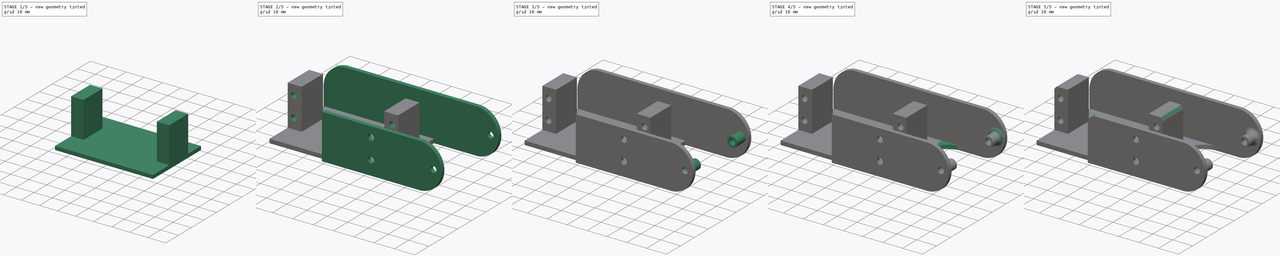
[diagram: build sequence overview — one tinted view per stage of 5, left to right]
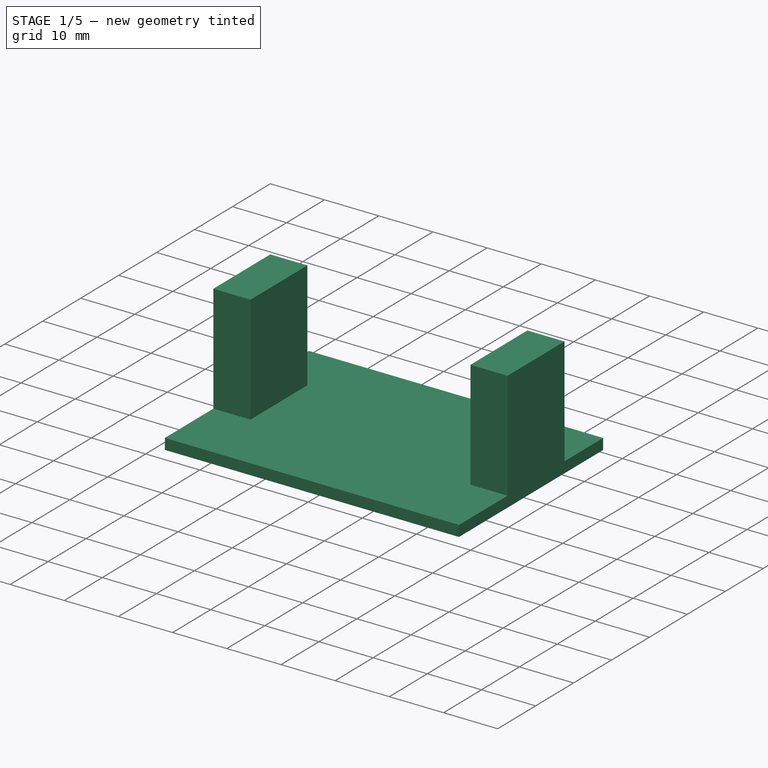
[diagram: stage 1 of 5 — iso view after this stage's code; geometry added in this stage tinted green]
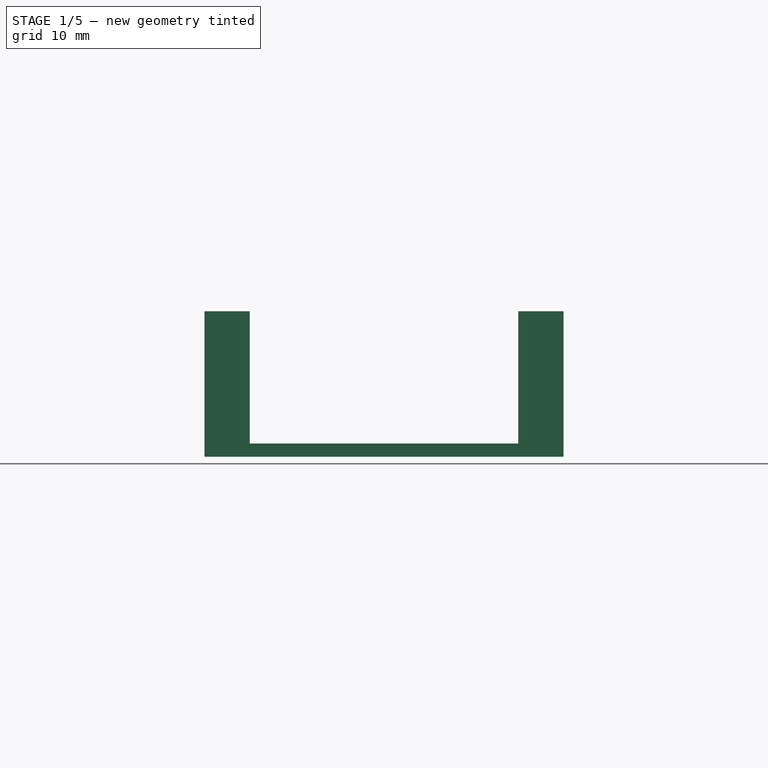
[diagram: stage 1 of 5 — front view after this stage's code; geometry added in this stage tinted green]
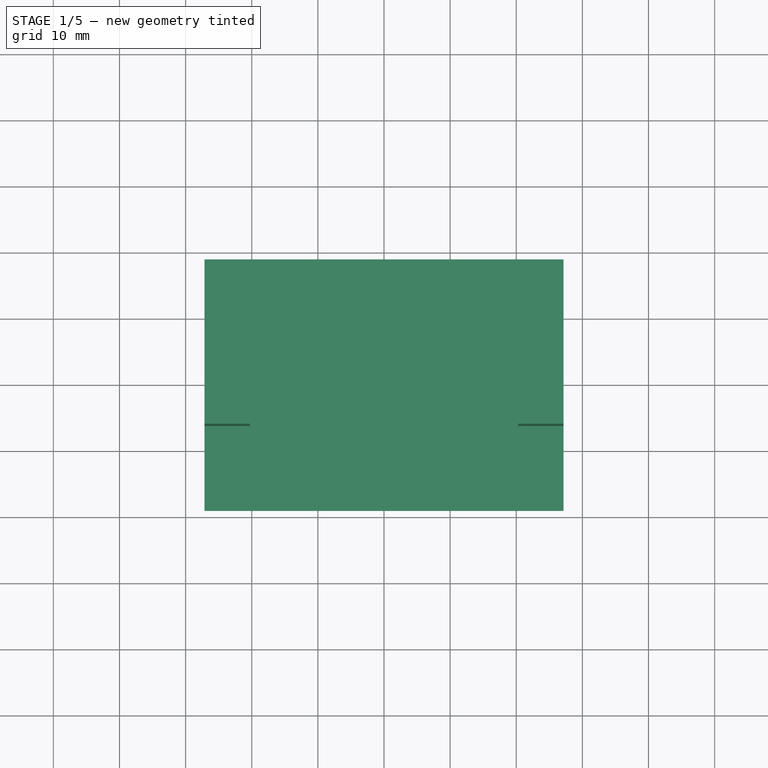
[diagram: stage 1 of 5 — top view after this stage's code; geometry added in this stage tinted green]
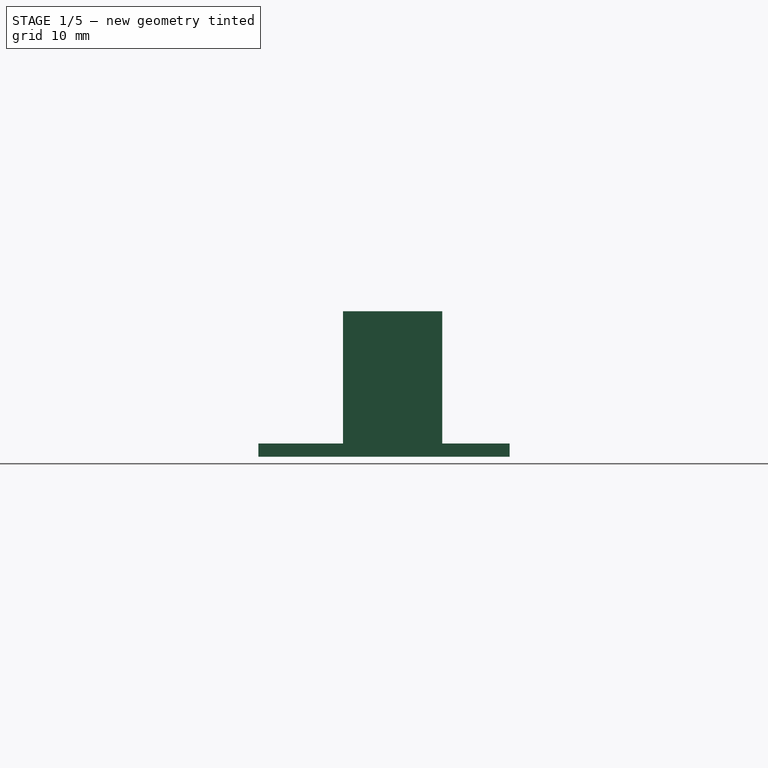
[diagram: stage 1 of 5 — right view after this stage's code; geometry added in this stage tinted green]
FCSTD DOCUMENT  (FreeCAD 0.20R29177 +233 (Git))
Label: 3BRnew_calf
License: All rights reserved
LicenseURL: http://en.wikipedia.org/wiki/All_rights_reserved
objects: Sketcher::SketchObject×10, PartDesign::Pad×8, PartDesign::Fillet×7, PartDesign::Pocket×2, Spreadsheet::Sheet×1, PartDesign::Body×1
note: 45 computed .brp shape members not serialized (recipe doc carries the construction recipe); baked Part::Feature solids carry a one-line shape summary decoded from their .brp

FEATURE [Spreadsheet::Sheet] Spreadsheet
  cells = A1=tolerance; B1(tolerance)=0.2; A2=thickness; B2(thickness)=2; A3=calf_len_overall; B3(calf_len_overall)=86; A4=servo_outer_x; B4(servo_x)=54.3; A5=servo_inner_x; B5(servo_inner_x)=40.2; A6=servo_y; B6(servo_y)=38; D6=sketch 41,5 real 38,0; A7=servo_z; B7(servo_z)=20; A8=foothold_y_len; B8(foothold_y_len)=15; A9=foothold_y_pos; B9(foothold_y_pos)==25.8 + B2; C9=c; D9=sketch 27.8 real 25,1; A10=foothold_z_len; B10(foothold_z_len)==B7; C10=c; A11=foothold_x_len; B11(foothold_x_len)==(B4 - B5) / 2 - B1; C11=c; A12=upper_hole_z_pos; B12(upper_hole_z_pos)==15 + B2; C12=c; A13=lower_hole_z_pos; B13(lower_hole_z_pos)==5 + B2; C13=c; A14=hole_x_pos; B14(hole_x_pos)=3; A15=hole_diameter; B15(hole_diameter)=3; A16=axis_x_pos; B16(axis_x_pos)=37.25; A17=axis_z_pos; B17(axis_z_pos)==10 + B2; A18=axis_y_pos; B18(axis_y_pos)=0; A19=axis_diameter; B19(axis_diameter)=5.9; A20=axis_length; B20(axis_length)=5; A21=plate_y_dim; B21(plate_y_dim)==B6 + B2; C21=c
FEATURE [Sketcher::SketchObject] Sketch  label="plateSketch"
  FullyConstrained = true
  MapMode = 2
  Placement = pos=(0,0,2) rot=(0,0,1;0rad)
  expr: Constraints[8] = Spreadsheet.servo_x
  expr: Constraints[9] = Spreadsheet.servo_y
  sketch-geometry (4):
    g0: LineSegment StartX=-27.15 StartY=19 StartZ=0 EndX=27.15 EndY=19 EndZ=0
    g1: LineSegment StartX=27.15 StartY=19 StartZ=0 EndX=27.15 EndY=-19 EndZ=0
    g2: LineSegment StartX=27.15 StartY=-19 StartZ=0 EndX=-27.15 EndY=-19 EndZ=0
    g3: LineSegment StartX=-27.15 StartY=-19 StartZ=0 EndX=-27.15 EndY=19 EndZ=0
  constraints (11):
    c: Coincident(g0,g1)
    c: Coincident(g1,g2)
    c: Coincident(g2,g3)
    c: Coincident(g3,g0)
    c: Horizontal(g0)
    c: Horizontal(g2)
    c: Vertical(g1)
    c: Vertical(g3)
    c: DistanceX(g2,g2) = 54.3
    c: DistanceY(g3,g3) = 38
    c: Symmetric(g0,g1,g-1)
FEATURE [PartDesign::Pad] Pad  label="platePad"
  Direction = (0,0,1)
  Length = 2
  Length2 = 10
  Placement = pos=(0,0,2) rot=(0,0,1;0rad)
  Profile = -> Sketch
  ReferenceAxis = -> Sketch [N_Axis]
  Type = 0
  expr: Length = Spreadsheet.thickness
FEATURE [Sketcher::SketchObject] Sketch003  label="servoHolderHigherSketch"
  ExternalGeometry = -> [Pad]
  FullyConstrained = true
  MapMode = 5
  Placement = pos=(0,0,4) rot=(0,0,1;0rad)
  Support = -> [Pad]
  expr: Constraints[10] = Spreadsheet.foothold_y_pos
  expr: Constraints[8] = Spreadsheet.foothold_y_len
  expr: Constraints[9] = Spreadsheet.foothold_x_len
  sketch-geometry (4):
    g0: LineSegment StartX=20.3 StartY=8.8 StartZ=0 EndX=27.15 EndY=8.8 EndZ=0
    g1: LineSegment StartX=27.15 StartY=8.8 StartZ=0 EndX=27.15 EndY=-6.2 EndZ=0
    g2: LineSegment StartX=27.15 StartY=-6.2 StartZ=0 EndX=20.3 EndY=-6.2 EndZ=0
    g3: LineSegment StartX=20.3 StartY=-6.2 StartZ=0 EndX=20.3 EndY=8.8 EndZ=0
  constraints (12):
    c: Coincident(g0,g1)
    c: Coincident(g1,g2)
    c: Coincident(g2,g3)
    c: Coincident(g3,g0)
    c: Horizontal(g0)
    c: Horizontal(g2)
    c: Vertical(g1)
    c: Vertical(g3)
    c: DistanceY(g1,g0) = 15
    c: DistanceX(g0,g0) = 6.85
    c: DistanceY(g-3,g0) = 27.8
    c: Vertical(g0,g-3)
FEATURE [PartDesign::Pad] Pad001  label="servoHolderHigherPad"
  BaseFeature = -> Pad
  Direction = (0,0,1)
  Length = 20
  Length2 = 10
  Placement = pos=(0,0,2) rot=(0,0,1;0rad)
  Profile = -> Sketch003
  ReferenceAxis = -> Sketch003 [N_Axis]
  Type = 0
  expr: Length = Spreadsheet.foothold_z_len
FEATURE [Sketcher::SketchObject] Sketch010  label="servoHolderLowerSketch"
  ExternalGeometry = -> [Pad001]
  FullyConstrained = true
  MapMode = 5
  Placement = pos=(0,0,4) rot=(0,0,1;0rad)
  Support = -> [Pad001]
  expr: Constraints[11] = Spreadsheet.foothold_y_pos
  expr: Constraints[8] = Spreadsheet.foothold_y_len
  expr: Constraints[9] = Spreadsheet.foothold_x_len
  sketch-geometry (4):
    g0: LineSegment StartX=-27.15 StartY=8.8 StartZ=0 EndX=-20.3 EndY=8.8 EndZ=0
    g1: LineSegment StartX=-20.3 StartY=8.8 StartZ=0 EndX=-20.3 EndY=-6.2 EndZ=0
    g2: LineSegment StartX=-20.3 StartY=-6.2 StartZ=0 EndX=-27.15 EndY=-6.2 EndZ=0
    g3: LineSegment StartX=-27.15 StartY=-6.2 StartZ=0 EndX=-27.15 EndY=8.8 EndZ=0
  constraints (12):
    c: Coincident(g0,g1)
    c: Coincident(g1,g2)
    c: Coincident(g2,g3)
    c: Coincident(g3,g0)
    c: Horizontal(g0)
    c: Horizontal(g2)
    c: Vertical(g1)
    c: Vertical(g3)
    c: DistanceY(g3,g3) = 15
    c: DistanceX(g2,g2) = 6.85
    c: Vertical(g2,g-3)
    c: DistanceY(g-3,g0) = 27.8
FEATURE [PartDesign::Pad] Pad002  label="servoHolderLowerPad"
  BaseFeature = -> Pad001
  Direction = (0,0,1)
  Length = 20
  Length2 = 10
  Placement = pos=(0,0,2) rot=(0,0,1;0rad)
  Profile = -> Sketch010
  ReferenceAxis = -> Sketch010 [N_Axis]
  Type = 0
  expr: Length = Spreadsheet.foothold_z_len
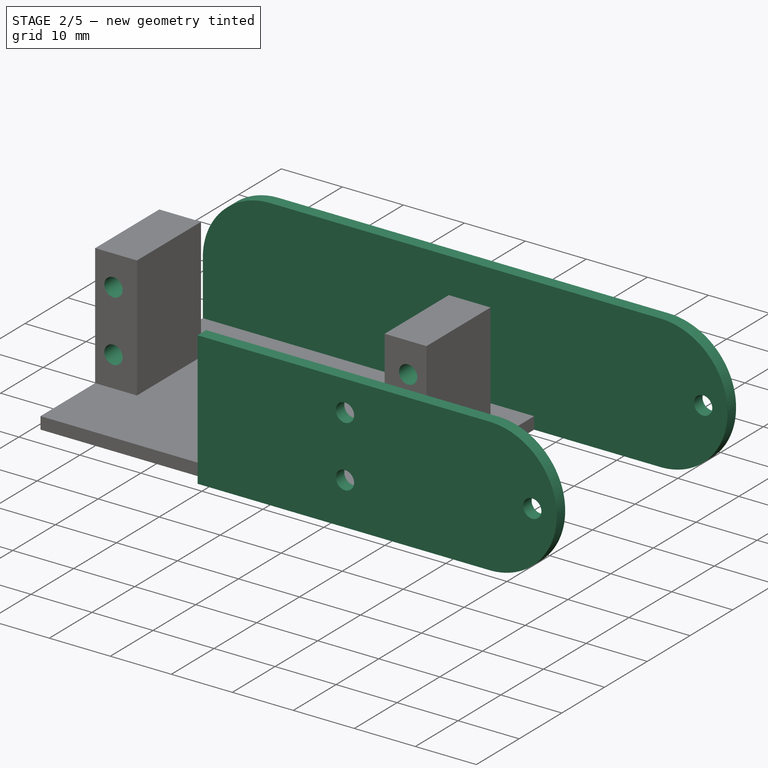
[diagram: stage 2 of 5 — iso view after this stage's code; geometry added in this stage tinted green]
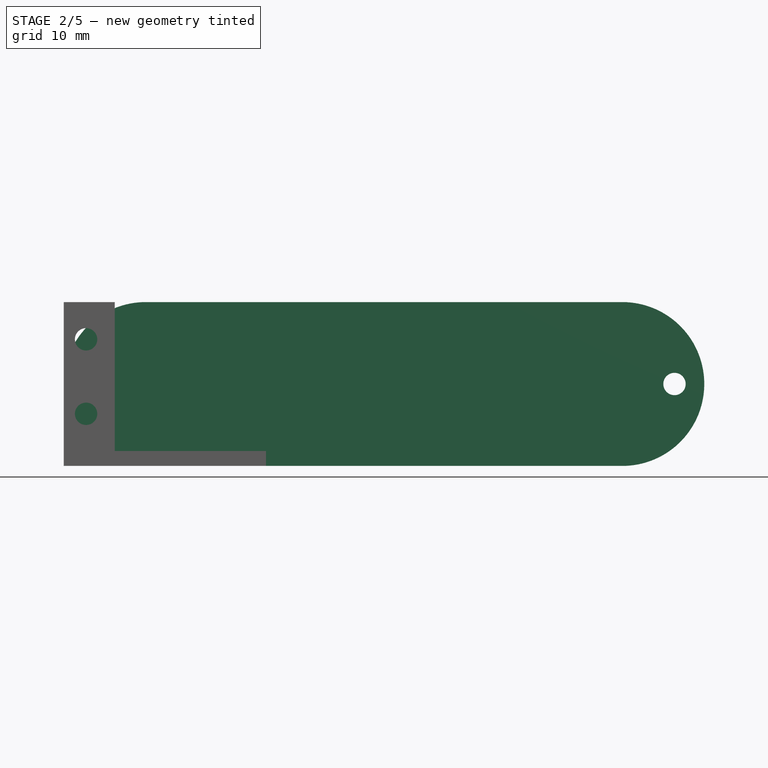
[diagram: stage 2 of 5 — front view after this stage's code; geometry added in this stage tinted green]
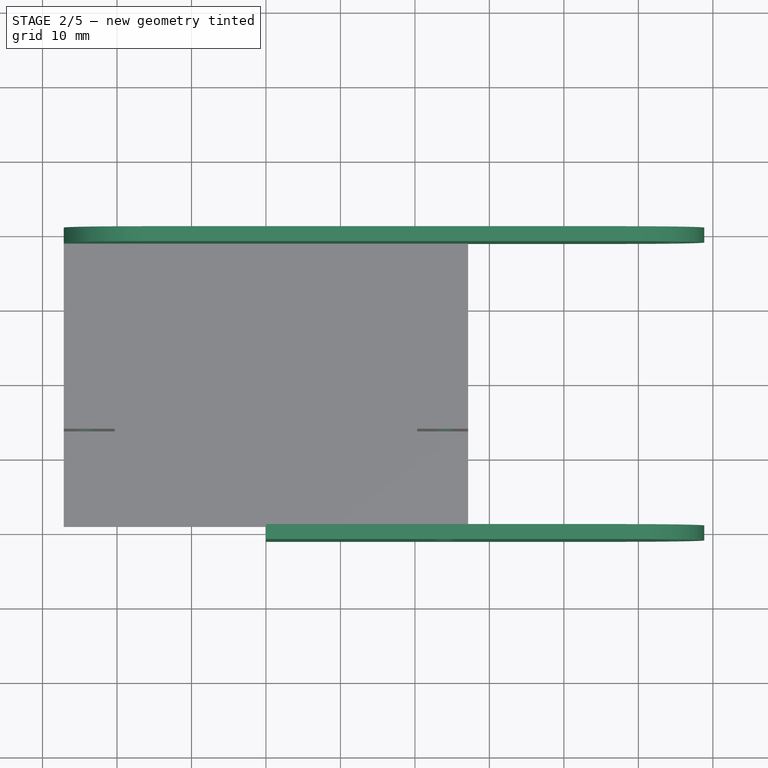
[diagram: stage 2 of 5 — top view after this stage's code; geometry added in this stage tinted green]
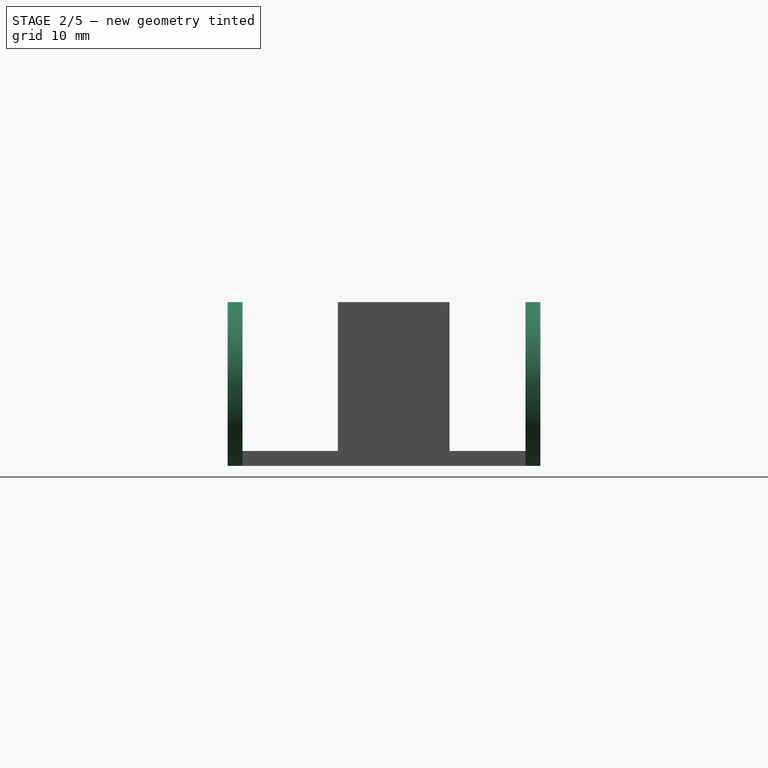
[diagram: stage 2 of 5 — right view after this stage's code; geometry added in this stage tinted green]
FEATURE [Sketcher::SketchObject] Sketch004  label="servoHoleHigherSketch"
  FullyConstrained = false
  MapMode = 5
  Placement = pos=(0,-6.2,2) rot=(1,0,0;1.5708rad)
  Support = -> [Pad002]
  expr: Constraints[2] = Spreadsheet.hole_diameter
  expr: Constraints[3] = Spreadsheet.lower_hole_z_pos
  sketch-geometry (2):
    g0: Circle CenterX=-24.15 CenterY=7 CenterZ=0 NormalX=0 NormalY=0 NormalZ=1 AngleXU=0 Radius=1.5
    g1: Circle CenterX=-24.15 CenterY=17 CenterZ=0 NormalX=0 NormalY=0 NormalZ=1 AngleXU=0 Radius=1.5
  constraints (4):
    c: Vertical(g0,g1)
    c: Equal(g1,g0)
    c: Diameter(g1) = 3
    c: DistanceY(g0) = 7
FEATURE [PartDesign::Pocket] Pocket  label="servoHolderHigherPocket"
  BaseFeature = -> Pad002
  Direction = (0,1,-2e-16)
  Length = 15
  Length2 = 5
  Placement = pos=(0,0,2) rot=(0,0,1;0rad)
  Profile = -> Sketch004
  ReferenceAxis = -> Sketch004 [N_Axis]
  Type = 0
  expr: Length = Spreadsheet.foothold_y_len
FEATURE [Sketcher::SketchObject] Sketch002  label="servoLowerHoleSketch"
  FullyConstrained = false
  MapMode = 5
  Placement = pos=(0,-6.2,2) rot=(1,0,0;1.5708rad)
  Support = -> [Pocket]
  expr: Constraints[2] = Spreadsheet.hole_diameter
  sketch-geometry (2):
    g0: Circle CenterX=24.15 CenterY=17 CenterZ=0 NormalX=0 NormalY=0 NormalZ=1 AngleXU=0 Radius=1.5
    g1: Circle CenterX=24.15 CenterY=7 CenterZ=0 NormalX=0 NormalY=0 NormalZ=1 AngleXU=0 Radius=1.5
  constraints (3):
    c: Vertical(g0,g1)
    c: Equal(g0,g1)
    c: Diameter(g0) = 3
FEATURE [PartDesign::Pocket] Pocket001
  BaseFeature = -> Pocket
  Direction = (0,1,-2e-16)
  Length = 15
  Length2 = 5
  Placement = pos=(0,0,2) rot=(0,0,1;0rad)
  Profile = -> Sketch002
  ReferenceAxis = -> Sketch002 [N_Axis]
  Type = 0
  expr: Length = Spreadsheet.foothold_y_len
FEATURE [Sketcher::SketchObject] Sketch005  label="servoBackSketch"
  FullyConstrained = false
  MapMode = 5
  Placement = pos=(0,19,2) rot=(0,0.707107,0.707107;3.14159rad)
  Support = -> [Pocket001]
  expr: Constraints[2] = Spreadsheet.hole_diameter
  sketch-geometry (7):
    g0: LineSegment StartX=16.15 StartY=22 StartZ=0 EndX=-47.85 EndY=22 EndZ=0
    g1: LineSegment StartX=27.15 StartY=0 StartZ=0 EndX=27.15 EndY=11 EndZ=0
    g2: Circle CenterX=-54.85 CenterY=11 CenterZ=0 NormalX=0 NormalY=0 NormalZ=1 AngleXU=0 Radius=1.5
    g3: LineSegment StartX=27.15 StartY=0 StartZ=0 EndX=-47.85 EndY=0 EndZ=0
    g4: GeomPoint X=10.15 Y=11 Z=0
    g5: ArcOfCircle CenterX=-47.85 CenterY=11 CenterZ=0 NormalX=0 NormalY=0 NormalZ=1 AngleXU=0 Radius=11 StartAngle=1.5708 EndAngle=4.71239
    g6: ArcOfCircle CenterX=16.15 CenterY=11 CenterZ=0 NormalX=0 NormalY=0 NormalZ=1 AngleXU=0 Radius=11 StartAngle=2.34e-14 EndAngle=1.5708
  constraints (18):
    c: Horizontal(g0)
    c: Vertical(g1)
    c: Diameter(g2) = 3
    c: Coincident(g3,g1)
    c: Horizontal(g3)
    c: DistanceX(g4,g1) = 17
    c: DistanceX(g2,g4) = 65
    c: Horizontal(g4,g2)
    c: DistanceY(g1,g4) = 11
    c: Coincident(g5,g0)
    c: Coincident(g5,g3)
    c: DistanceX(g2,g5) = 7
    c: Vertical(g0,g5)
    c: Tangent(g0,g6) = -1.5708
    c: Tangent(g1,g6) = -1.5708
    c: Horizontal(g2,g5)
    c: Vertical(g5,g3)
    c: Horizontal(g4,g6)
FEATURE [PartDesign::Pad] Pad003
  BaseFeature = -> Pocket001
  Direction = (0,1,-2e-16)
  Length = 2
  Length2 = 10
  Placement = pos=(0,0,2) rot=(0,0,1;0rad)
  Profile = -> Sketch005
  ReferenceAxis = -> Sketch005 [N_Axis]
  Type = 0
  expr: Length = Spreadsheet.thickness
FEATURE [Sketcher::SketchObject] Sketch007  label="servoFrontSketch"
  FullyConstrained = false
  MapMode = 5
  Placement = pos=(0,-19,2) rot=(1,0,0;1.5708rad)
  Support = -> [Pad003]
  expr: Constraints[13] = 11
  expr: Constraints[17] = Spreadsheet.hole_diameter
  expr: Constraints[18] = Spreadsheet.hole_diameter
  expr: Constraints[1] = Spreadsheet.hole_diameter
  sketch-geometry (8):
    g0: LineSegment StartX=0 StartY=22 StartZ=0 EndX=0 EndY=0 EndZ=0
    g1: Circle CenterX=54.85 CenterY=11 CenterZ=0 NormalX=0 NormalY=0 NormalZ=1 AngleXU=0 Radius=1.5
    g2: GeomPoint X=-10.15 Y=11 Z=0
    g3: LineSegment StartX=0 StartY=0 StartZ=0 EndX=47.85 EndY=0 EndZ=0
    g4: LineSegment StartX=0 StartY=22 StartZ=0 EndX=47.85 EndY=22 EndZ=0
    g5: ArcOfCircle CenterX=47.85 CenterY=11 CenterZ=0 NormalX=0 NormalY=0 NormalZ=1 AngleXU=0 Radius=11 StartAngle=4.71239 EndAngle=7.85398
    g6: Circle CenterX=24.15 CenterY=7 CenterZ=0 NormalX=0 NormalY=0 NormalZ=1 AngleXU=0 Radius=1.5
    g7: Circle CenterX=24.15 CenterY=17 CenterZ=0 NormalX=0 NormalY=0 NormalZ=1 AngleXU=0 Radius=1.5
  constraints (19):
    c: Vertical(g0)
    c: Diameter(g1) = 3
    c: DistanceX(g2,g1) = 65
    c: Coincident(g3,g0)
    c: Horizontal(g3)
    c: Coincident(g4,g0)
    c: Horizontal(g4)
    c: Vertical(g4,g3)
    c: Coincident(g0,g-1)
    c: Coincident(g5,g4)
    c: Coincident(g5,g3)
    c: Vertical(g4,g5)
    c: DistanceX(g5,g1) = 7
    c: DistanceY(g0,g1) = 11
    c: Horizontal(g1,g2)
    c: DistanceY(g0,g0) = 22
    c: Vertical(g7,g6)
    c: Diameter(g7) = 3
    c: Diameter(g6) = 3
FEATURE [PartDesign::Pad] Pad004
  BaseFeature = -> Pad003
  Direction = (0,-1,2e-16)
  Length = 2
  Length2 = 10
  Placement = pos=(0,0,2) rot=(0,0,1;0rad)
  Profile = -> Sketch007
  ReferenceAxis = -> Sketch007 [N_Axis]
  Type = 0
  expr: Length = Spreadsheet.thickness
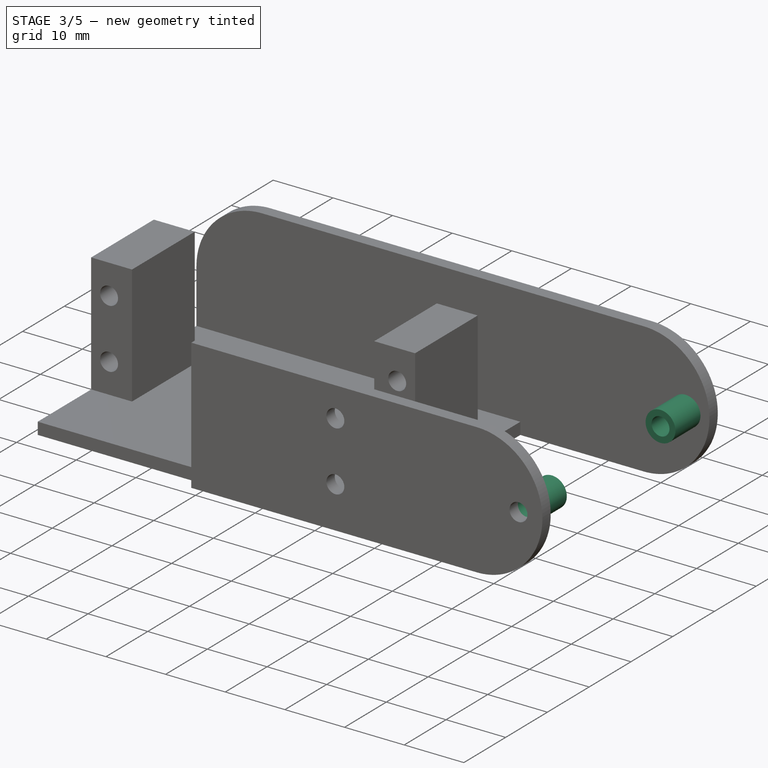
[diagram: stage 3 of 5 — iso view after this stage's code; geometry added in this stage tinted green]
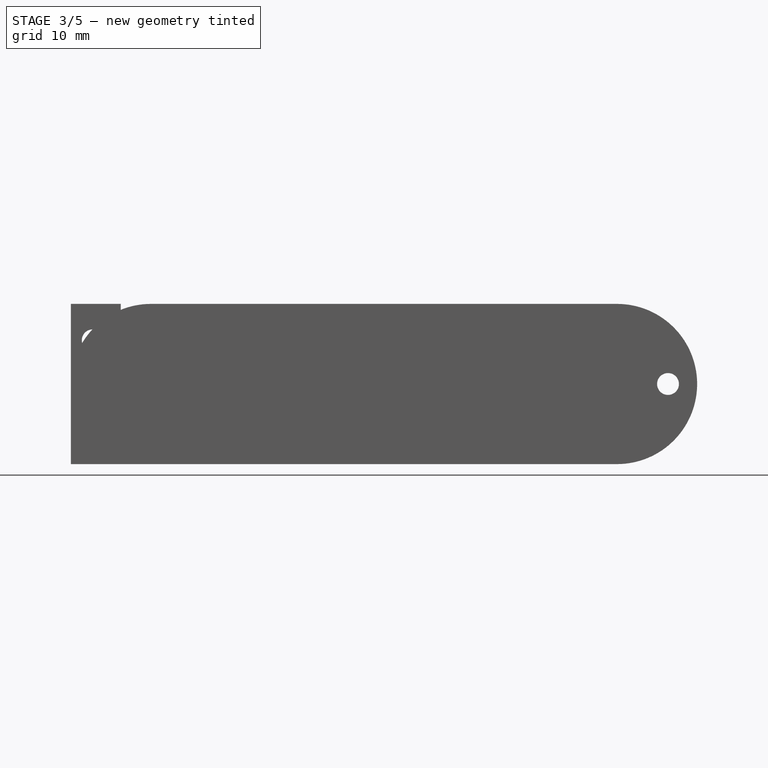
[diagram: stage 3 of 5 — front view after this stage's code; geometry added in this stage tinted green]
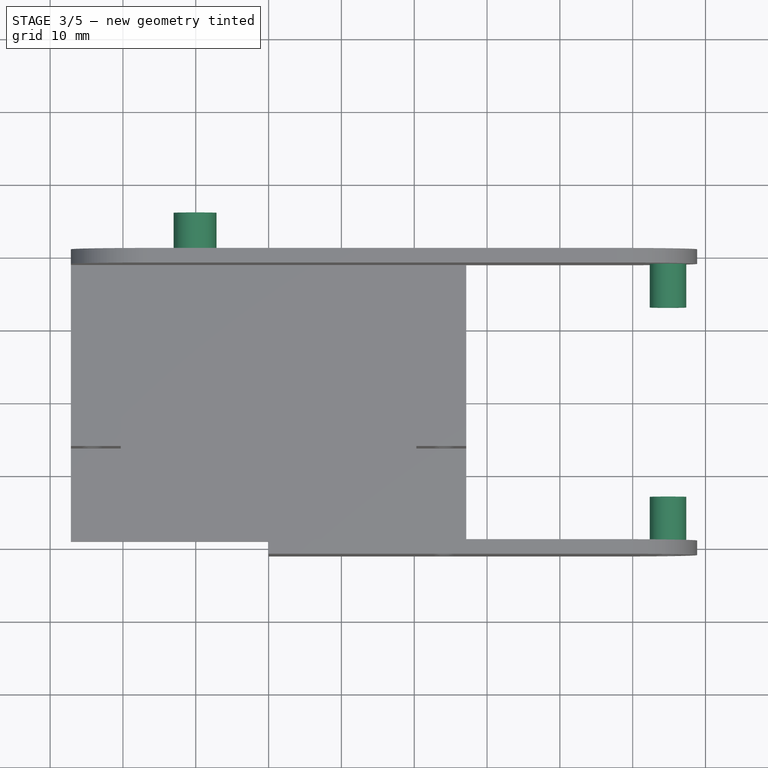
[diagram: stage 3 of 5 — top view after this stage's code; geometry added in this stage tinted green]
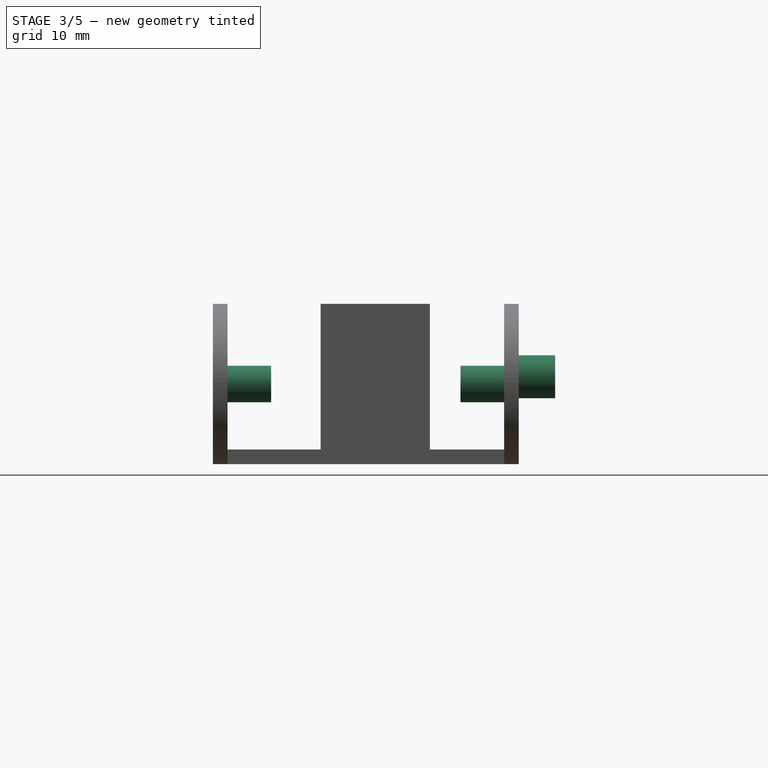
[diagram: stage 3 of 5 — right view after this stage's code; geometry added in this stage tinted green]
FEATURE [Sketcher::SketchObject] Sketch006  label="servoCounterKnobSketch"
  FullyConstrained = false
  MapMode = 5
  Placement = pos=(0,21,2) rot=(0,0.707107,0.707107;3.14159rad)
  Support = -> [Pad004]
  expr: Constraints[0] = Spreadsheet.axis_diameter
  sketch-geometry (1):
    g0: Circle CenterX=10.1 CenterY=12 CenterZ=0 NormalX=0 NormalY=0 NormalZ=1 AngleXU=0 Radius=2.95
  constraints (1):
    c: Diameter(g0) = 5.9
FEATURE [PartDesign::Pad] Pad005
  BaseFeature = -> Pad004
  Direction = (0,1,-2e-16)
  Length = 5
  Length2 = 10
  Placement = pos=(0,0,2) rot=(0,0,1;0rad)
  Profile = -> Sketch006
  ReferenceAxis = -> Sketch006 [N_Axis]
  Type = 0
  expr: Length = Spreadsheet.axis_length
FEATURE [Sketcher::SketchObject] Sketch008  label="frontScrewExtrudeSketch"
  FullyConstrained = false
  MapMode = 5
  Placement = pos=(1e-16,-19,2) rot=(0,0.707107,0.707107;3.14159rad)
  Support = -> [Pad005]
  expr: Constraints[0] = Spreadsheet.hole_diameter
  expr: Constraints[1] = Spreadsheet.hole_diameter + Spreadsheet.thickness
  sketch-geometry (2):
    g0: Circle CenterX=-54.85 CenterY=11 CenterZ=0 NormalX=0 NormalY=0 NormalZ=1 AngleXU=0 Radius=1.5
    g1: Circle CenterX=-54.85 CenterY=11 CenterZ=0 NormalX=0 NormalY=0 NormalZ=1 AngleXU=0 Radius=2.5
  constraints (3):
    c: Diameter(g0) = 3
    c: Diameter(g1) = 5
    c: Coincident(g0,g1)
FEATURE [PartDesign::Pad] Pad006
  BaseFeature = -> Pad005
  Direction = (0,1,-2e-16)
  Length = 6
  Length2 = 10
  Placement = pos=(0,0,2) rot=(0,0,1;0rad)
  Profile = -> Sketch008
  ReferenceAxis = -> Sketch008 [N_Axis]
  Type = 0
FEATURE [Sketcher::SketchObject] Sketch009  label="backScrewExtrudeSketch"
  FullyConstrained = false
  MapMode = 5
  Placement = pos=(0,19,2) rot=(1,0,0;1.5708rad)
  Support = -> [Pad006]
  expr: Constraints[1] = Spreadsheet.hole_diameter
  expr: Constraints[2] = Spreadsheet.hole_diameter + Spreadsheet.thickness
  sketch-geometry (2):
    g0: Circle CenterX=54.85 CenterY=11 CenterZ=0 NormalX=0 NormalY=0 NormalZ=1 AngleXU=0 Radius=1.5
    g1: Circle CenterX=54.85 CenterY=11 CenterZ=0 NormalX=0 NormalY=0 NormalZ=1 AngleXU=0 Radius=2.5
  constraints (3):
    c: Coincident(g1,g0)
    c: Diameter(g0) = 3
    c: Diameter(g1) = 5
FEATURE [PartDesign::Pad] Pad007
  BaseFeature = -> Pad006
  Direction = (0,-1,2e-16)
  Length = 6
  Length2 = 10
  Placement = pos=(0,0,2) rot=(0,0,1;0rad)
  Profile = -> Sketch009
  ReferenceAxis = -> Sketch009 [N_Axis]
  Type = 0
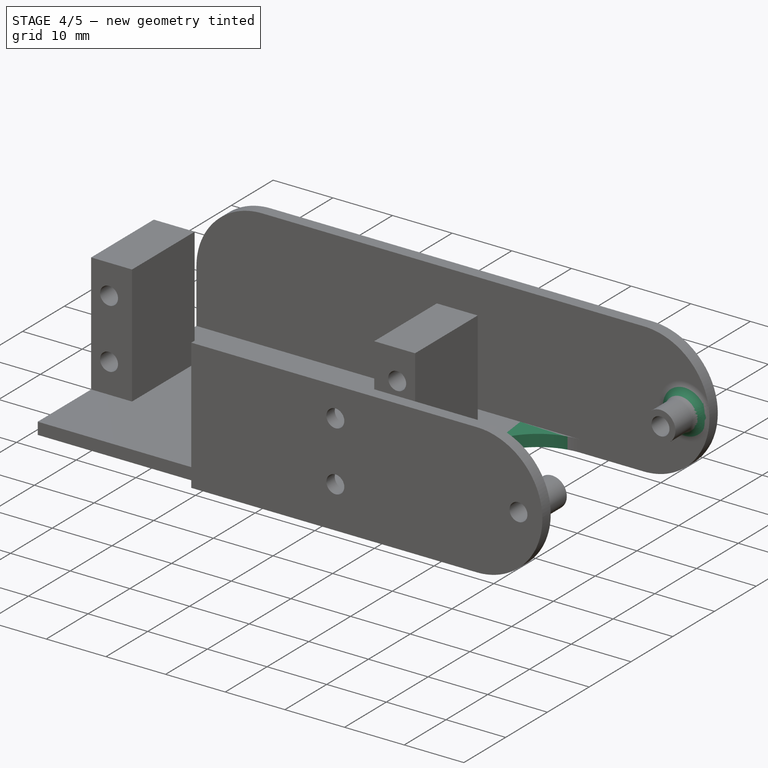
[diagram: stage 4 of 5 — iso view after this stage's code; geometry added in this stage tinted green]
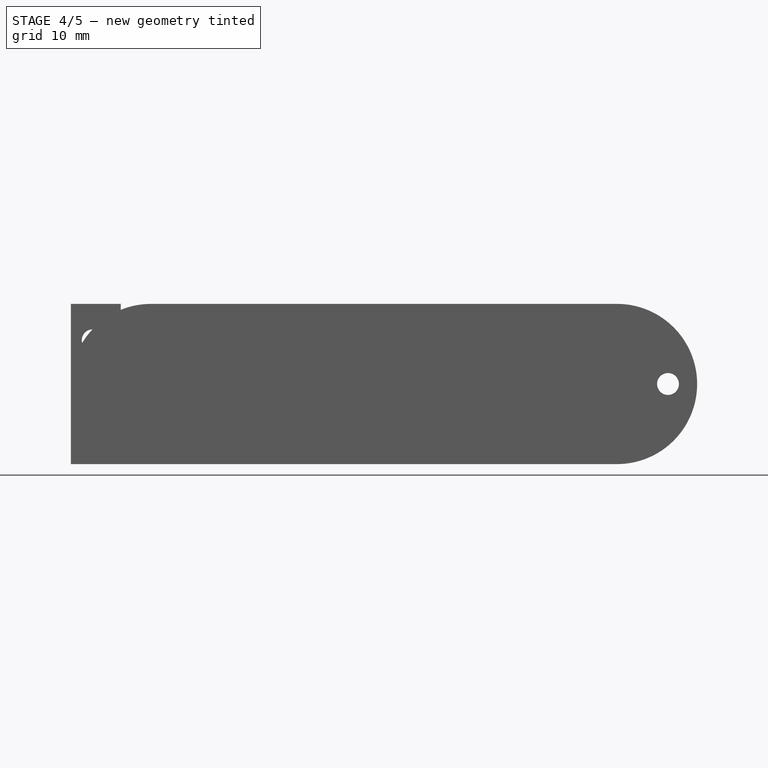
[diagram: stage 4 of 5 — front view after this stage's code; geometry added in this stage tinted green]
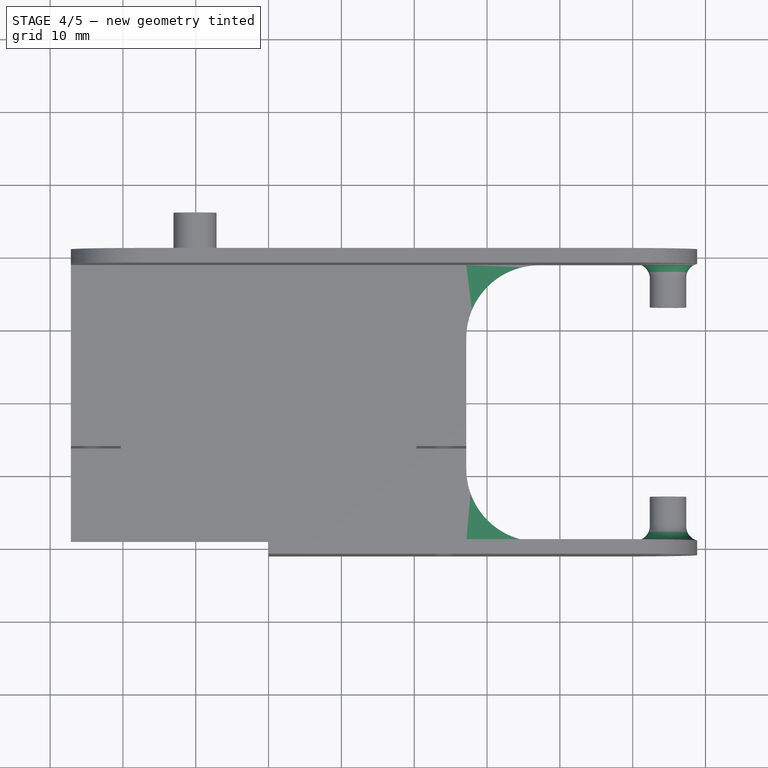
[diagram: stage 4 of 5 — top view after this stage's code; geometry added in this stage tinted green]
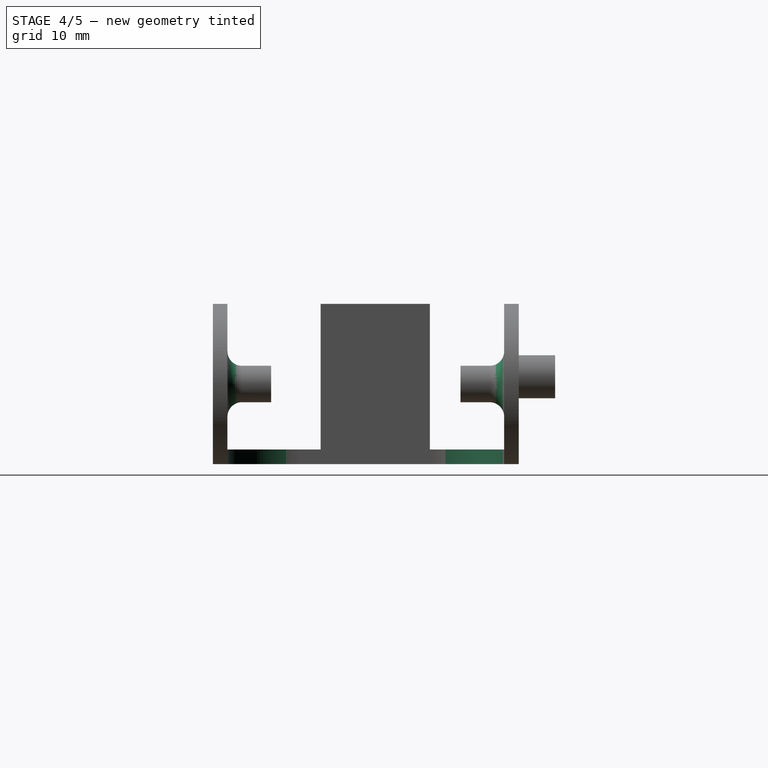
[diagram: stage 4 of 5 — right view after this stage's code; geometry added in this stage tinted green]
FEATURE [PartDesign::Fillet] Fillet
  Base = -> Pad007 [Edge48]
  BaseFeature = -> Pad007
  Placement = pos=(0,0,2) rot=(0,0,1;0rad)
  Radius = 10
  SupportTransform = false
  UseAllEdges = false
FEATURE [PartDesign::Fillet] Fillet001
  Base = -> Fillet [Edge9]
  BaseFeature = -> Fillet
  Placement = pos=(0,0,2) rot=(0,0,1;0rad)
  Radius = 10
  SupportTransform = false
  UseAllEdges = false
FEATURE [PartDesign::Fillet] Fillet002
  Base = -> Fillet001 [Edge51]
  BaseFeature = -> Fillet001
  Placement = pos=(0,0,2) rot=(0,0,1;0rad)
  Radius = 2
  SupportTransform = false
  UseAllEdges = false
FEATURE [PartDesign::Fillet] Fillet003
  Base = -> Fillet002 [Edge88]
  BaseFeature = -> Fillet002
  Placement = pos=(0,0,2) rot=(0,0,1;0rad)
  Radius = 2
  SupportTransform = false
  UseAllEdges = false
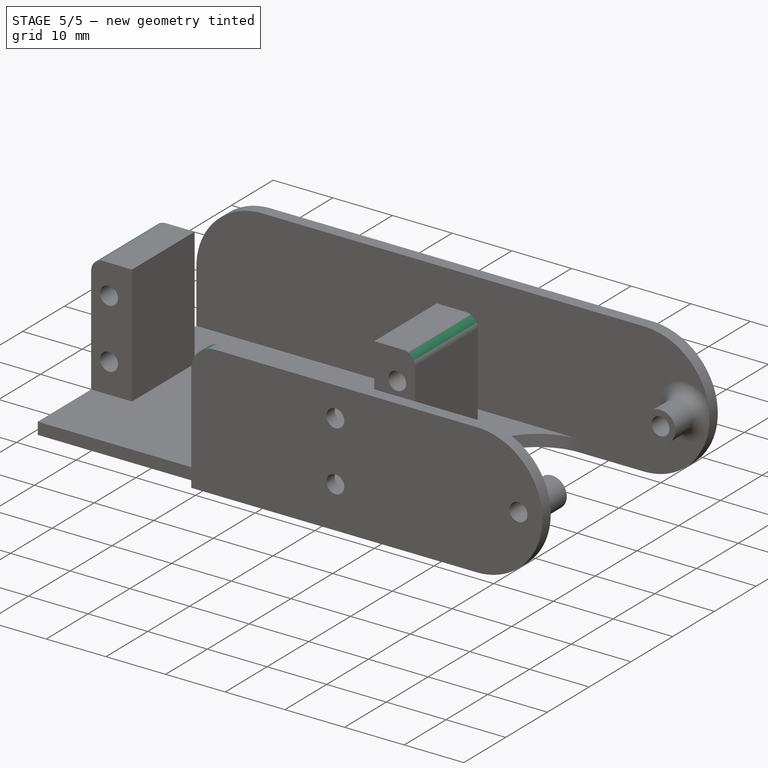
[diagram: stage 5 of 5 — iso view after this stage's code; geometry added in this stage tinted green]
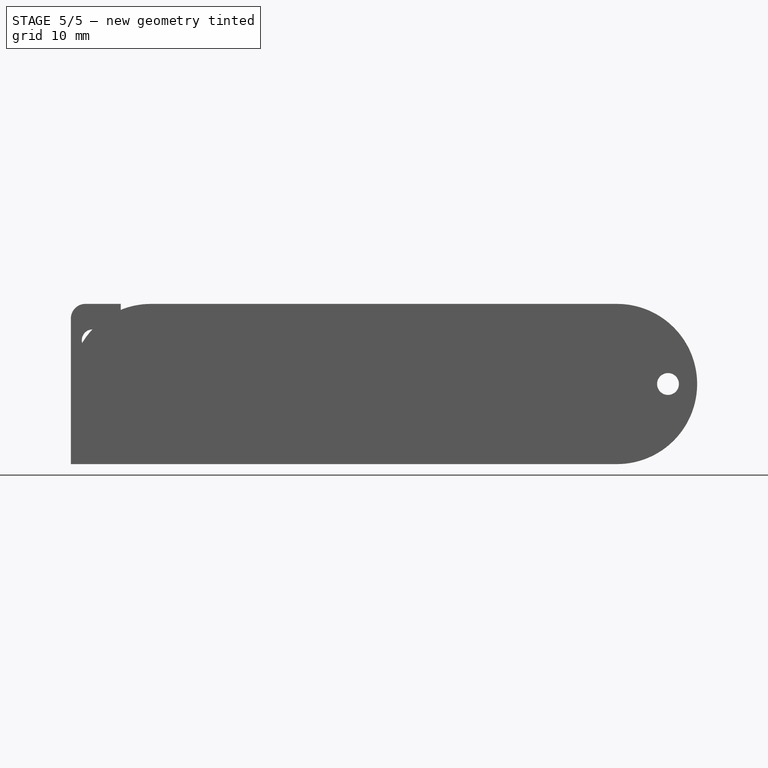
[diagram: stage 5 of 5 — front view after this stage's code; geometry added in this stage tinted green]
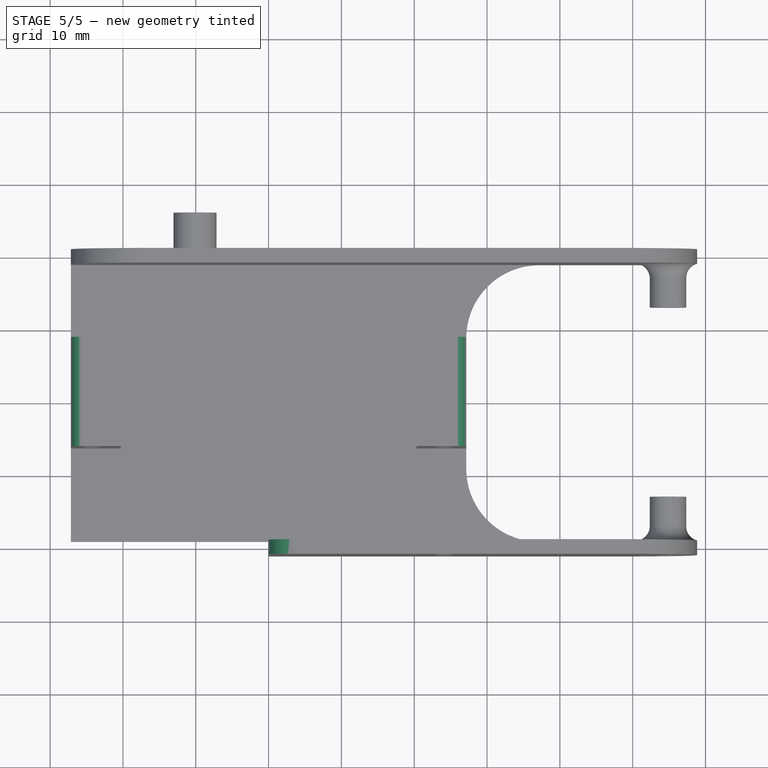
[diagram: stage 5 of 5 — top view after this stage's code; geometry added in this stage tinted green]
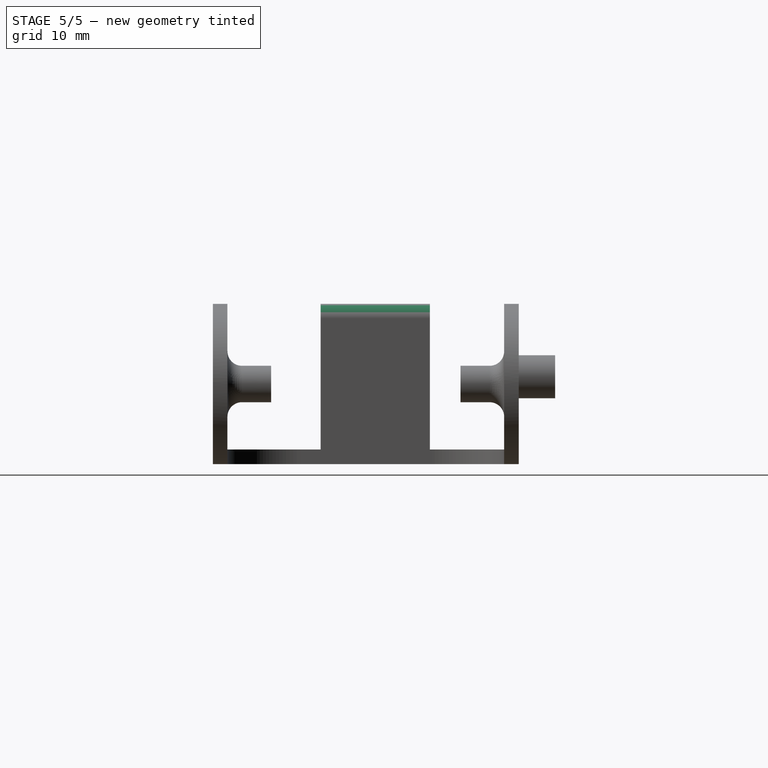
[diagram: stage 5 of 5 — right view after this stage's code; geometry added in this stage tinted green]
FEATURE [PartDesign::Fillet] Fillet004
  Base = -> Fillet003 [Edge103]
  BaseFeature = -> Fillet003
  Placement = pos=(0,0,2) rot=(0,0,1;0rad)
  Radius = 2
  SupportTransform = false
  UseAllEdges = false
FEATURE [PartDesign::Fillet] Fillet005
  Base = -> Fillet004 [Edge95]
  BaseFeature = -> Fillet004
  Placement = pos=(0,0,2) rot=(0,0,1;0rad)
  Radius = 2
  SupportTransform = false
  UseAllEdges = false
FEATURE [PartDesign::Fillet] Fillet006
  Base = -> Fillet005 [Edge112]
  BaseFeature = -> Fillet005
  Placement = pos=(0,0,2) rot=(0,0,1;0rad)
  Radius = 4
  SupportTransform = false
  UseAllEdges = false
FEATURE [PartDesign::Body] Body
  Group = -> [Pad,Pad001,Pad002,Sketch,Sketch002,Sketch003,Sketch004,Sketch005,Sketch006,Sketch007,Sketch008,Sketch009,Sketch010,Pocket,Pocket001,Pad003,Pad004,Pad005,Pad006,Pad007,Fillet,Fillet001,Fillet002,Fillet003,Fillet004,Fillet005,Fillet006]
  Origin = -> Origin
  Tip = -> Fillet006
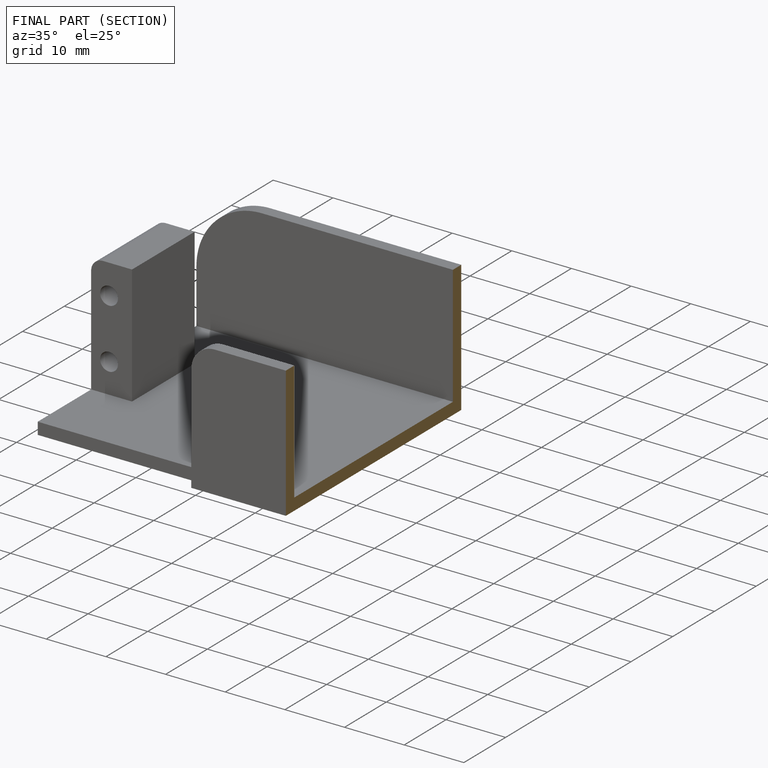
[diagram: finished part — half-section view (interior)]
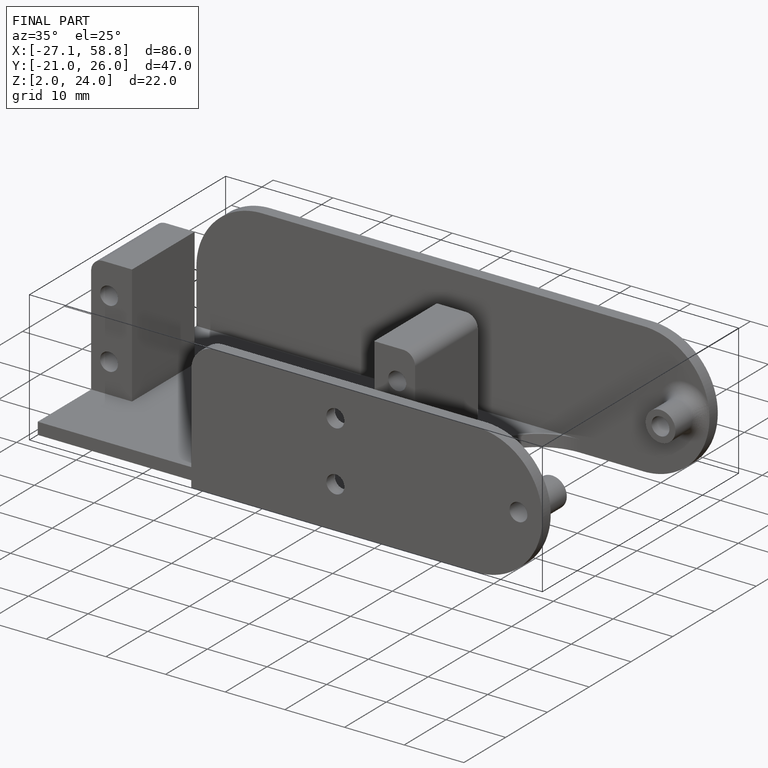
[diagram: finished part — iso view with bounding-box wireframe]
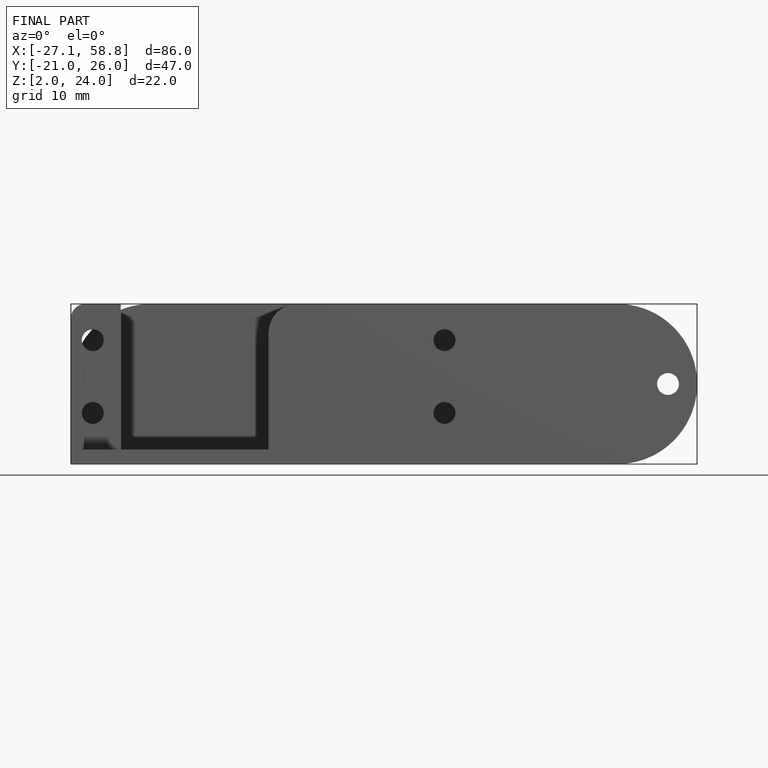
[diagram: finished part — front view with bounding-box wireframe]
